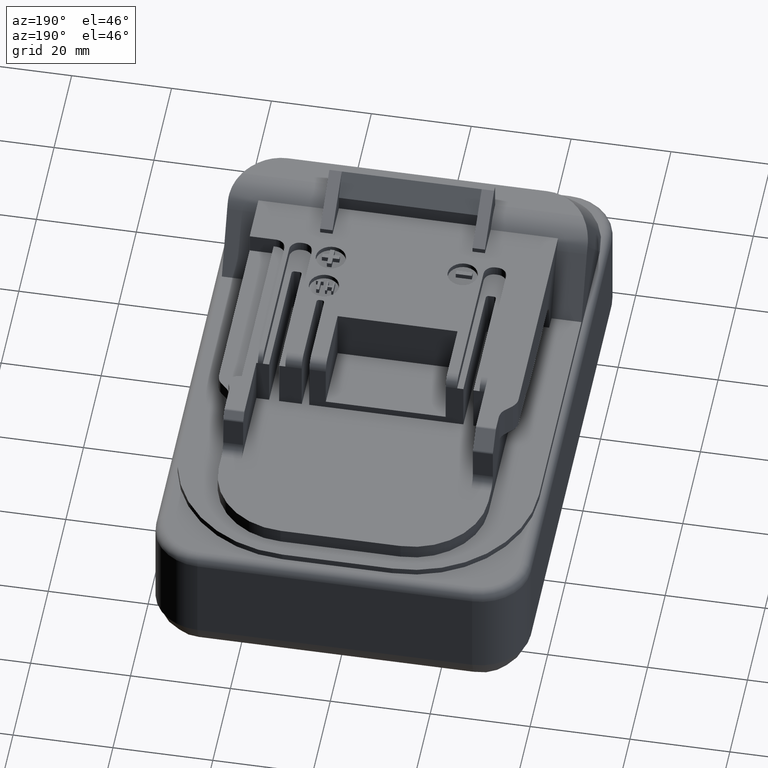
[diagram: clean part render]
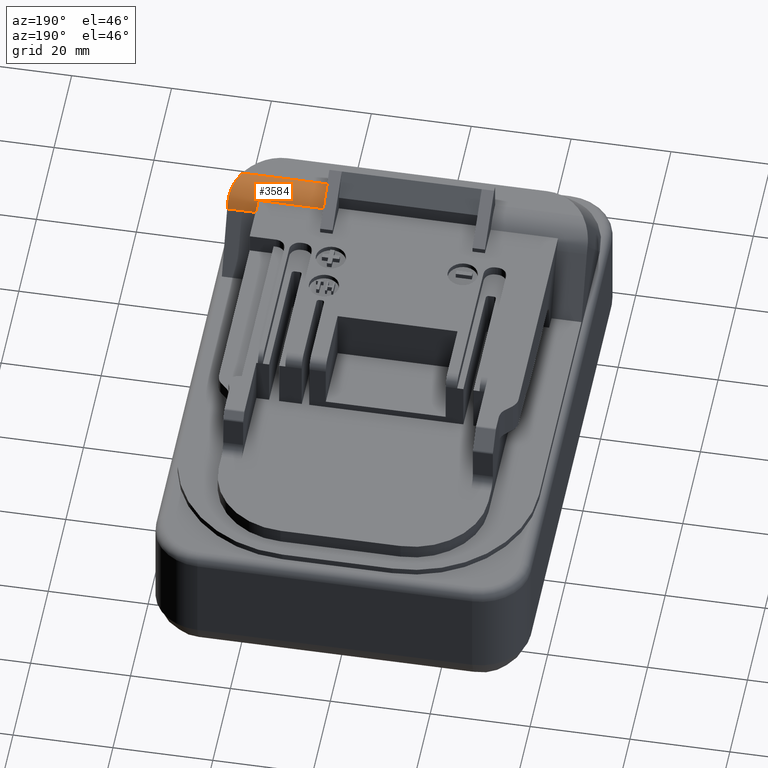
[diagram: same view with one face highlighted and labeled with its STEP entity id]
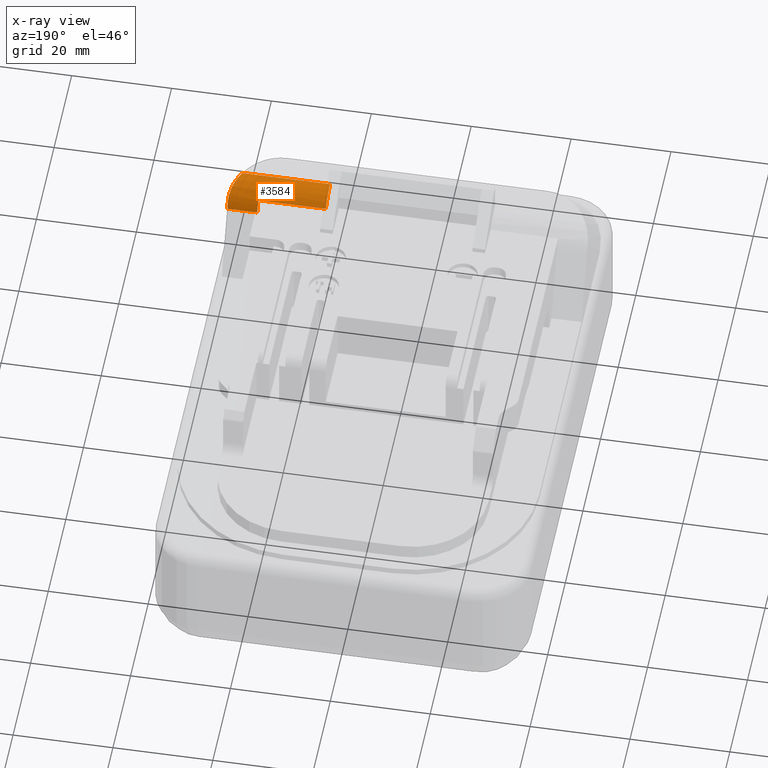
[diagram: x-ray of the same camera — body ghosted, the highlighted face saturated]
A machine part, auxiliary view. The second image highlights one B-rep face of the part: STEP entity #3584.
The next image is the same camera in x-ray: the body ghosted, the highlighted face saturated — about 0% of this face is hidden behind the body in this view.
In plain terms, the highlighted cylindrical surface (edge-blend (fillet) strip) has radius 7 mm, axis along (-1, 0, 0).
Its self-contained STEP definition (entity closure, byte-faithful):
#24=B_SPLINE_CURVE_WITH_KNOTS('',3,(#5515,#5516,#5517,#5518,#5519,#5520,
#5521,#5522),.UNSPECIFIED.,.F.,.F.,(4,2,2,4),(0.632172946125767,0.862830918123113,
1.15180449725113,1.27059282792684),.UNSPECIFIED.);
#341=LINE('',#5552,#745);
#423=LINE('',#5761,#827);
#442=LINE('',#5807,#846);
#745=VECTOR('',#4458,1.);
#827=VECTOR('',#4632,1.);
#846=VECTOR('',#4675,1.);
#1015=CYLINDRICAL_SURFACE('',#3884,7.);
#1141=FACE_OUTER_BOUND('',#1338,.T.);
#1338=EDGE_LOOP('',(#3024,#3025,#3026,#3027,#3028,#3029,#3030));
#1487=CIRCLE('',#3815,7.);
#1512=CIRCLE('',#3885,7.);
#1513=CIRCLE('',#3886,7.);
#1707=VERTEX_POINT('',#5506);
#1709=VERTEX_POINT('',#5510);
#1710=VERTEX_POINT('',#5514);
#1718=VERTEX_POINT('',#5551);
#1791=VERTEX_POINT('',#5760);
#1805=VERTEX_POINT('',#5804);
#1806=VERTEX_POINT('',#5806);
#2115=EDGE_CURVE('',#1707,#1709,#1487,.T.);
#2116=EDGE_CURVE('',#1707,#1710,#24,.F.);
#2131=EDGE_CURVE('',#1709,#1718,#341,.T.);
#2233=EDGE_CURVE('',#1710,#1791,#423,.T.);
#2255=EDGE_CURVE('',#1718,#1805,#1512,.T.);
#2256=EDGE_CURVE('',#1806,#1805,#442,.T.);
#2257=EDGE_CURVE('',#1806,#1791,#1513,.T.);
#3024=ORIENTED_EDGE('',*,*,#2233,.F.);
#3025=ORIENTED_EDGE('',*,*,#2116,.F.);
#3026=ORIENTED_EDGE('',*,*,#2115,.T.);
#3027=ORIENTED_EDGE('',*,*,#2131,.T.);
#3028=ORIENTED_EDGE('',*,*,#2255,.T.);
#3029=ORIENTED_EDGE('',*,*,#2256,.F.);
#3030=ORIENTED_EDGE('',*,*,#2257,.T.);
#3584=ADVANCED_FACE('',(#1141),#1015,.T.);
#3815=AXIS2_PLACEMENT_3D('',#5512,#4422,#4423);
#3884=AXIS2_PLACEMENT_3D('',#5803,#4671,#4672);
#3885=AXIS2_PLACEMENT_3D('',#5805,#4673,#4674);
#3886=AXIS2_PLACEMENT_3D('',#5808,#4676,#4677);
#4422=DIRECTION('center_axis',(-1.,0.,0.));
#4423=DIRECTION('ref_axis',(0.,1.,0.));
#4458=DIRECTION('',(-1.,0.,0.));
#4632=DIRECTION('',(-1.,0.,0.));
#4671=DIRECTION('center_axis',(-1.,0.,0.));
#4672=DIRECTION('ref_axis',(0.,-7.21644966006E-16,1.));
#4673=DIRECTION('center_axis',(1.,0.,0.));
#4674=DIRECTION('ref_axis',(0.,-1.,0.));
#4675=DIRECTION('',(1.,0.,0.));
#4676=DIRECTION('center_axis',(1.,0.,0.));
#4677=DIRECTION('ref_axis',(0.,-1.,0.));
#5506=CARTESIAN_POINT('',(36.,132.0211379743,43.6762443059));
#5510=CARTESIAN_POINT('',(36.,132.8914921156,42.2805792543));
#5512=CARTESIAN_POINT('Origin',(36.,126.5577612002,39.3));
#5514=CARTESIAN_POINT('',(34.1228694129,126.5577612002,46.3));
#5515=CARTESIAN_POINT('Ctrl Pts',(34.1228694128839,126.557761200209,46.3));
#5516=CARTESIAN_POINT('Ctrl Pts',(34.4971835405473,127.252973752191,46.2999999999991));
#5517=CARTESIAN_POINT('Ctrl Pts',(34.8651129063666,127.989972684705,46.1931887741881));
#5518=CARTESIAN_POINT('Ctrl Pts',(35.5434953240245,129.604817242971,45.6722710151422));
#5519=CARTESIAN_POINT('Ctrl Pts',(35.8118825148075,130.472064887918,45.1815541980473));
#5520=CARTESIAN_POINT('Ctrl Pts',(35.9751542981999,131.483869391877,44.2887855180832));
#5521=CARTESIAN_POINT('Ctrl Pts',(35.9999999999981,131.765141799018,43.9958342236882));
#5522=CARTESIAN_POINT('Ctrl Pts',(36.,132.021137974261,43.6762443058689));
#5551=CARTESIAN_POINT('',(30.,132.8914921156,42.2805792543));
#5552=CARTESIAN_POINT('',(0.,132.8914921156,42.2805792543));
#5760=CARTESIAN_POINT('',(16.5,126.5577612002,46.3));
#5761=CARTESIAN_POINT('',(0.,126.5577612002,46.3));
#5803=CARTESIAN_POINT('Origin',(0.,126.5577612002,39.3));
#5804=CARTESIAN_POINT('',(30.,131.4567406858,44.3));
#5805=CARTESIAN_POINT('Origin',(30.,126.5577612002,39.3));
#5806=CARTESIAN_POINT('',(16.5,131.4567406858,44.3));
#5807=CARTESIAN_POINT('',(23.25,131.4567406858,44.3));
#5808=CARTESIAN_POINT('Origin',(16.5,126.5577612002,39.3));